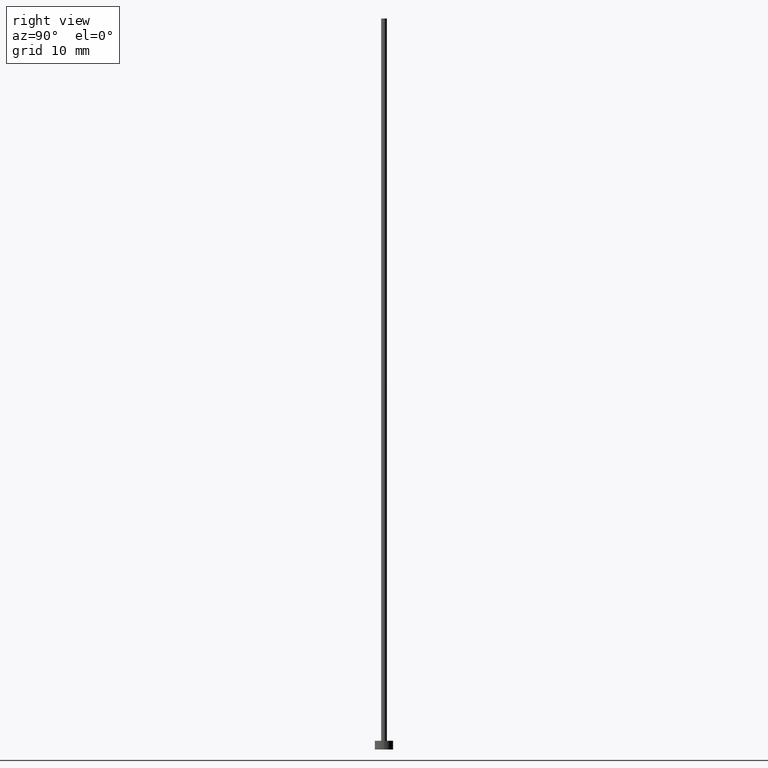
[diagram: clean part render]
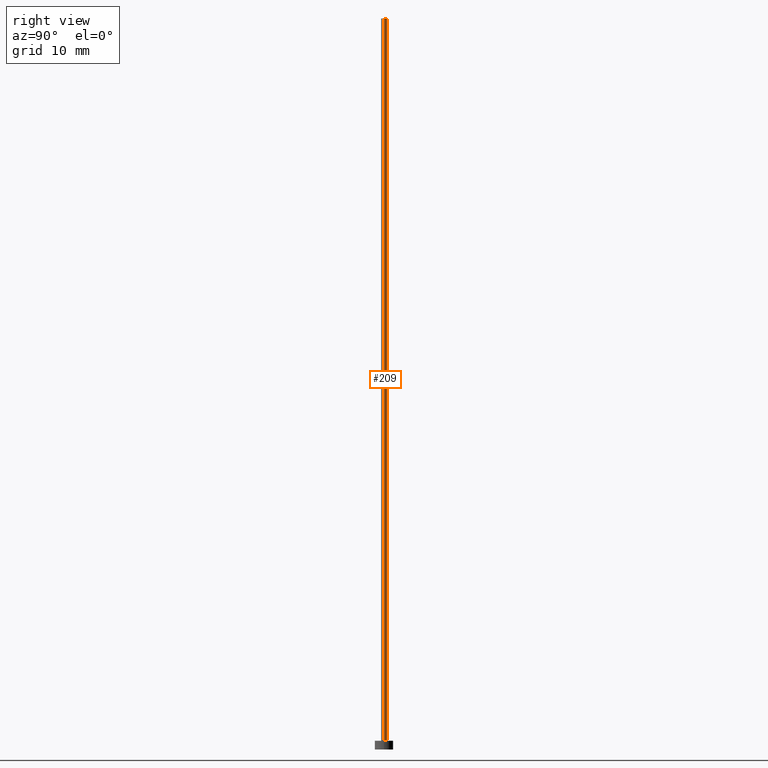
[diagram: same view with one face highlighted and labeled with its STEP entity id]
A machine part, right view. The second image highlights one B-rep face of the part: STEP entity #209.
In plain terms, the highlighted cylindrical surface (edge-blend (fillet) strip) has radius 0.4 mm, axis along (-0, -0, -1).
Its self-contained STEP definition (entity closure, byte-faithful):
#7 = CARTESIAN_POINT ( 'NONE',  ( 0.000000000000000000, 0.000000000000000000, 100.0000000000000000 ) ) ;
#10 = AXIS2_PLACEMENT_3D ( 'NONE', #22, #23, #171 ) ;
#16 = CARTESIAN_POINT ( 'NONE',  ( -0.4000000000000000222, 0.000000000000000000, 100.0000000000000000 ) ) ;
#21 = EDGE_CURVE ( 'NONE', #215, #40, #121, .T. ) ;
#22 = CARTESIAN_POINT ( 'NONE',  ( 0.000000000000000000, 0.000000000000000000, 1.199999999999999956 ) ) ;
#23 = DIRECTION ( 'NONE',  ( 0.000000000000000000, 0.000000000000000000, 1.000000000000000000 ) ) ;
#31 = AXIS2_PLACEMENT_3D ( 'NONE', #229, #167, #94 ) ;
#40 = VERTEX_POINT ( 'NONE', #88 ) ;
#45 = EDGE_CURVE ( 'NONE', #235, #215, #132, .T. ) ;
#47 = DIRECTION ( 'NONE',  ( 1.000000000000000000, 0.000000000000000000, 0.000000000000000000 ) ) ;
#70 = EDGE_CURVE ( 'NONE', #235, #194, #87, .T. ) ;
#83 = ORIENTED_EDGE ( 'NONE', *, *, #70, .F. ) ;
#87 = CIRCLE ( 'NONE', #224, 0.4000000000000000222 ) ;
#88 = CARTESIAN_POINT ( 'NONE',  ( -0.4000000000000000222, 0.000000000000000000, 1.199999999999999956 ) ) ;
#94 = DIRECTION ( 'NONE',  ( -1.000000000000000000, 0.000000000000000000, 0.000000000000000000 ) ) ;
#98 = CYLINDRICAL_SURFACE ( 'NONE', #31, 0.4000000000000000222 ) ;
#101 = FACE_OUTER_BOUND ( 'NONE', #162, .T. ) ;
#115 = DIRECTION ( 'NONE',  ( -0.000000000000000000, -0.000000000000000000, -1.000000000000000000 ) ) ;
#121 = CIRCLE ( 'NONE', #10, 0.4000000000000000222 ) ;
#131 = CARTESIAN_POINT ( 'NONE',  ( 0.4000000000000000222, 4.898587196589413075E-17, 100.0000000000000000 ) ) ;
#132 = LINE ( 'NONE', #158, #143 ) ;
#142 = ORIENTED_EDGE ( 'NONE', *, *, #21, .T. ) ;
#143 = VECTOR ( 'NONE', #221, 1000.000000000000000 ) ;
#146 = DIRECTION ( 'NONE',  ( 0.000000000000000000, 0.000000000000000000, 1.000000000000000000 ) ) ;
#157 = VECTOR ( 'NONE', #115, 1000.000000000000000 ) ;
#158 = CARTESIAN_POINT ( 'NONE',  ( 0.4000000000000000222, 4.898587196589413075E-17, 100.0000000000000000 ) ) ;
#159 = ORIENTED_EDGE ( 'NONE', *, *, #165, .F. ) ;
#162 = EDGE_LOOP ( 'NONE', ( #83, #189, #142, #159 ) ) ;
#163 = LINE ( 'NONE', #16, #157 ) ;
#165 = EDGE_CURVE ( 'NONE', #194, #40, #163, .T. ) ;
#167 = DIRECTION ( 'NONE',  ( -0.000000000000000000, -0.000000000000000000, -1.000000000000000000 ) ) ;
#168 = CARTESIAN_POINT ( 'NONE',  ( -0.4000000000000000222, 0.000000000000000000, 100.0000000000000000 ) ) ;
#171 = DIRECTION ( 'NONE',  ( 1.000000000000000000, 0.000000000000000000, 0.000000000000000000 ) ) ;
#189 = ORIENTED_EDGE ( 'NONE', *, *, #45, .T. ) ;
#194 = VERTEX_POINT ( 'NONE', #168 ) ;
#209 = ADVANCED_FACE ( 'NONE', ( #101 ), #98, .T. ) ;
#215 = VERTEX_POINT ( 'NONE', #245 ) ;
#221 = DIRECTION ( 'NONE',  ( -0.000000000000000000, -0.000000000000000000, -1.000000000000000000 ) ) ;
#224 = AXIS2_PLACEMENT_3D ( 'NONE', #7, #146, #47 ) ;
#229 = CARTESIAN_POINT ( 'NONE',  ( 0.000000000000000000, 0.000000000000000000, 100.0000000000000000 ) ) ;
#235 = VERTEX_POINT ( 'NONE', #131 ) ;
#245 = CARTESIAN_POINT ( 'NONE',  ( 0.4000000000000000222, 4.898587196589413075E-17, 1.199999999999999956 ) ) ;